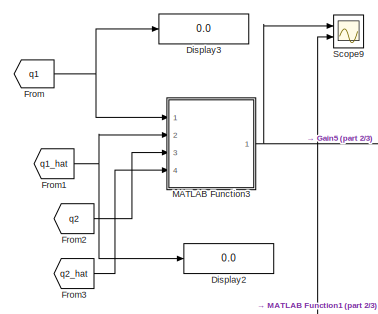
[diagram: root canvas - part 1/3, top left region]
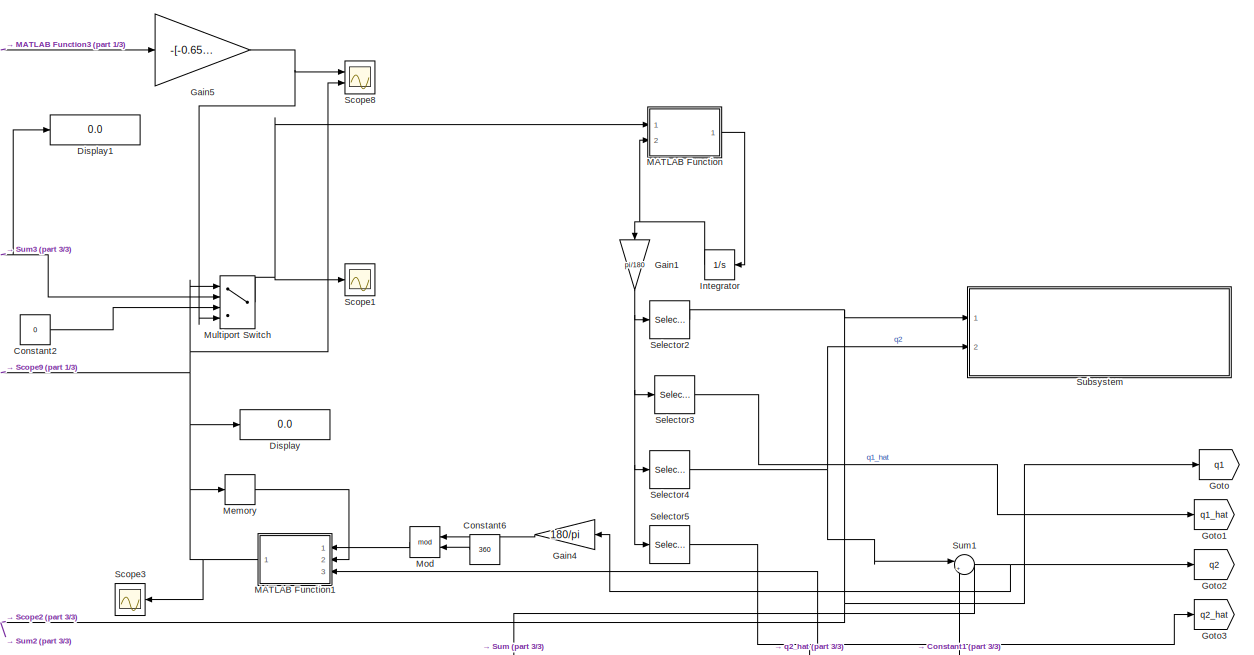
[diagram: root canvas - part 2/3, middle right region]
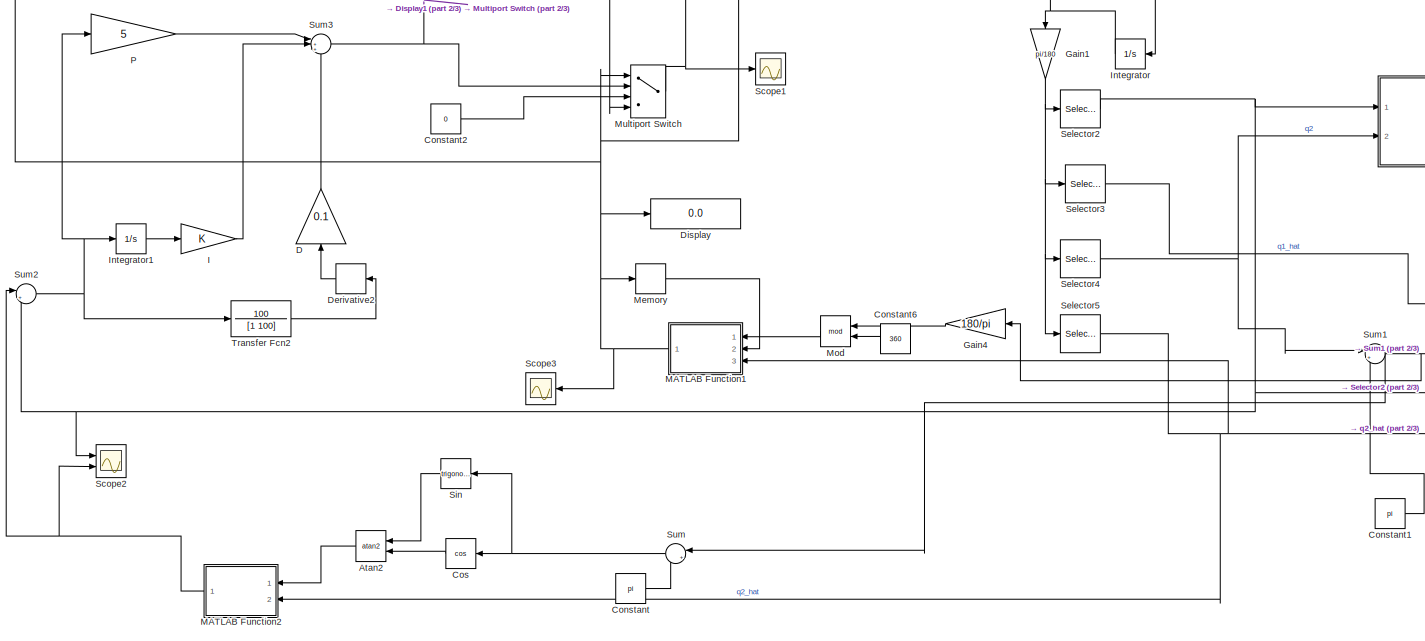
[diagram: root canvas - part 3/3, central region]
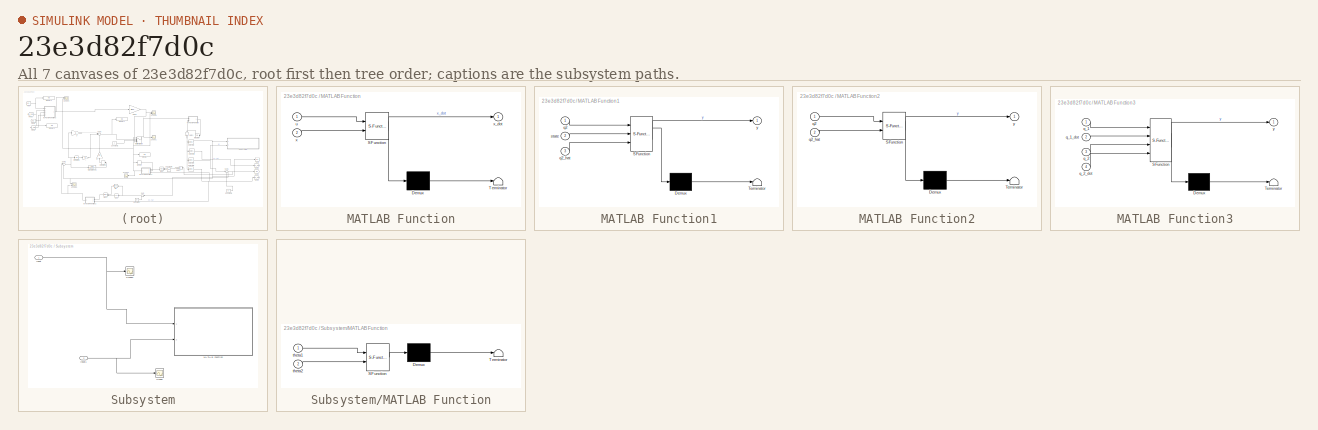
[diagram: thumbnail index - all 7 canvases of the model, root first then tree order]
MODEL slx_23e3d82f7d0c
KIND model
CONFIG AbsTol = auto
CONFIG EnableMultiTasking = off
CONFIG FixedStep = 0.01
CONFIG MaxStep = auto
CONFIG MinStep = auto
CONFIG RelTol = 1e-3
CONFIG SampleTimeConstraint = Unconstrained
CONFIG SolverName = ode1
CONFIG StartTime = 0
CONFIG StopTime = 10
BLOCK [Trigonometry] Atan2
  Operator = atan2
  Ports = [2, 1]
BLOCK [Constant] Constant
  Value = pi
BLOCK [Constant] Constant1
  Value = pi
BLOCK [Constant] Constant2
  Value = 0
BLOCK [Constant] Constant6
  Value = 360
BLOCK [Trigonometry] Cos
  Operator = cos
  Ports = [1, 1]
BLOCK [Gain] D
  Gain = 0.1
  NameLocation = left
BLOCK [Derivative] Derivative2
BLOCK [Display] Display
  Decimation = 1
  Ports = [1]
BLOCK [Display] Display1
  Decimation = 1
  Ports = [1]
BLOCK [Display] Display2
  Decimation = 1
  Ports = [1]
BLOCK [Display] Display3
  Decimation = 1
  Ports = [1]
BLOCK [From] From
  GotoTag = q1
BLOCK [From] From1
  GotoTag = q1_hat
BLOCK [From] From2
  GotoTag = q2
BLOCK [From] From3
  GotoTag = q2_hat
BLOCK [Gain] Gain1
  Gain = pi/180
  NameLocation = right
BLOCK [Gain] Gain4
  Gain = 180/pi
BLOCK [Gain] Gain5
  Gain = -[-0.6561,-1.1004,-10.3936,-1.2498]
  Multiplication = Matrix(K*u)
BLOCK [Goto] Goto
  GotoTag = q1
BLOCK [Goto] Goto1
  GotoTag = q1_hat
BLOCK [Goto] Goto2
  GotoTag = q2
BLOCK [Goto] Goto3
  GotoTag = q2_hat
BLOCK [Gain] I
BLOCK [Integrator] Integrator
  InitialCondition = [0;0;20;0]
  NameLocation = top
  Ports = [1, 1]
BLOCK [Integrator] Integrator1
  Ports = [1, 1]
BLOCK [SubSystem] MATLAB Function
  ErrorFcn = Stateflow.Translate.translate
  PermitHierarchicalResolution = ExplicitOnly
  Ports = [2, 1]
  RequestExecContextInheritance = off
  SFBlockType = MATLAB Function
  TreatAsAtomicUnit = on
BLOCK [Demux] MATLAB Function/ Demux 
  Outputs = 1
  Ports = [1, 1]
BLOCK [S-Function] MATLAB Function/ SFunction 
  EnableBusSupport = on
  FunctionName = sf_sfun
  PortCounts = [2 2]
  Ports = [2, 2]
  SFcnIsStateOwnerBlock = off
  SFunctionDeploymentMode = off
  Tag = Stateflow S-Function 1
BLOCK [Terminator] MATLAB Function/ Terminator 
BLOCK [Inport] MATLAB Function/u
BLOCK [Inport] MATLAB Function/x
  Port = 2
BLOCK [Outport] MATLAB Function/x_dot
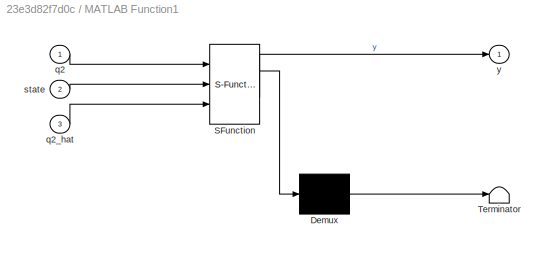
BLOCK [SubSystem] MATLAB Function1
  ErrorFcn = Stateflow.Translate.translate
  PermitHierarchicalResolution = ExplicitOnly
  Ports = [3, 1]
  RequestExecContextInheritance = off
  SFBlockType = MATLAB Function
  TreatAsAtomicUnit = on
BLOCK [Demux] MATLAB Function1/ Demux 
  Outputs = 1
  Ports = [1, 1]
BLOCK [S-Function] MATLAB Function1/ SFunction 
  EnableBusSupport = on
  FunctionName = sf_sfun
  PortCounts = [3 2]
  Ports = [3, 2]
  SFcnIsStateOwnerBlock = off
  SFunctionDeploymentMode = off
  Tag = Stateflow S-Function 3
BLOCK [Terminator] MATLAB Function1/ Terminator 
BLOCK [Inport] MATLAB Function1/q2
BLOCK [Inport] MATLAB Function1/q2_hat
  Port = 3
BLOCK [Inport] MATLAB Function1/state
  Port = 2
BLOCK [Outport] MATLAB Function1/y
BLOCK [SubSystem] MATLAB Function2
  AttributesFormatString = %<Tag>
  ErrorFcn = Stateflow.Translate.translate
  PermitHierarchicalResolution = ExplicitOnly
  Ports = [2, 1]
  RequestExecContextInheritance = off
  SFBlockType = MATLAB Function
  Tag = Desired
  TreatAsAtomicUnit = on
BLOCK [Demux] MATLAB Function2/ Demux 
  Outputs = 1
  Ports = [1, 1]
BLOCK [S-Function] MATLAB Function2/ SFunction 
  EnableBusSupport = on
  FunctionName = sf_sfun
  PortCounts = [2 2]
  Ports = [2, 2]
  SFcnIsStateOwnerBlock = off
  SFunctionDeploymentMode = off
  Tag = Stateflow S-Function 4
BLOCK [Terminator] MATLAB Function2/ Terminator 
BLOCK [Inport] MATLAB Function2/q2
BLOCK [Inport] MATLAB Function2/q2_hat
  Port = 2
BLOCK [Outport] MATLAB Function2/y
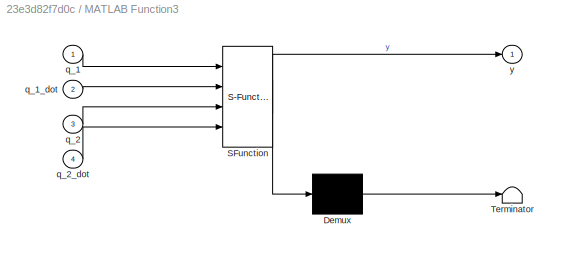
BLOCK [SubSystem] MATLAB Function3
  ErrorFcn = Stateflow.Translate.translate
  PermitHierarchicalResolution = ExplicitOnly
  Ports = [4, 1]
  RequestExecContextInheritance = off
  SFBlockType = MATLAB Function
  TreatAsAtomicUnit = on
BLOCK [Demux] MATLAB Function3/ Demux 
  Outputs = 1
  Ports = [1, 1]
BLOCK [S-Function] MATLAB Function3/ SFunction 
  EnableBusSupport = on
  FunctionName = sf_sfun
  PortCounts = [4 2]
  Ports = [4, 2]
  SFcnIsStateOwnerBlock = off
  SFunctionDeploymentMode = off
  Tag = Stateflow S-Function 5
BLOCK [Terminator] MATLAB Function3/ Terminator 
BLOCK [Inport] MATLAB Function3/q_1
BLOCK [Inport] MATLAB Function3/q_1_dot
  Port = 2
BLOCK [Inport] MATLAB Function3/q_2
  Port = 3
BLOCK [Inport] MATLAB Function3/q_2_dot
  Port = 4
BLOCK [Outport] MATLAB Function3/y
BLOCK [Memory] Memory
  InitialCondition = 1
BLOCK [Math] Mod
  Operator = mod
  Ports = [2, 1]
BLOCK [MultiPortSwitch] Multiport Switch
  InputSameDT = off
  Ports = [4, 1]
  SaturateOnIntegerOverflow = off
BLOCK [Gain] P
  Gain = 5
BLOCK [Scope] Scope1
  Floating = off
  NumInputPorts = 1
  Ports = [1]
  ScopeSpecificationString = Simulink.scopes.TimeScopeBlockCfg('CurrentConfiguration', extmgr.ConfigurationSet(extmgr.Configuration('Core','General UI',true),extmgr.Configuration('Core','Source UI',true),extmgr.Configuration('Sources','WiredSimulink',true,'DataLoggingVariableName','ScopeData1'),extmgr.Configuration('Visuals','Time Domain',true,'SerializedDisplays',{struct('MinYLimReal','-49.80571','MaxYLimReal','49.06084','YL...<+1410ch>
BLOCK [Scope] Scope2
  Floating = off
  NumInputPorts = 2
  Ports = [2]
  ScopeSpecificationString = Simulink.scopes.TimeScopeBlockCfg('CurrentConfiguration', extmgr.ConfigurationSet(extmgr.Configuration('Core','General UI',true),extmgr.Configuration('Core','Source UI',true),extmgr.Configuration('Sources','WiredSimulink',true,'DataLoggingVariableName','ScopeData2'),extmgr.Configuration('Visuals','Time Domain',true,'SerializedDisplays',{struct('MinYLimReal','-2.2841','MaxYLimReal','2.16445','YLabe...<+1461ch>
BLOCK [Scope] Scope3
  Floating = off
  NumInputPorts = 1
  Ports = [1]
  ScopeSpecificationString = Simulink.scopes.TimeScopeBlockCfg('CurrentConfiguration', extmgr.ConfigurationSet(extmgr.Configuration('Core','General UI',true),extmgr.Configuration('Core','Source UI',true),extmgr.Configuration('Sources','WiredSimulink',true,'DataLoggingVariableName','ScopeData3'),extmgr.Configuration('Visuals','Time Domain',true,'SerializedDisplays',{struct('MinYLimReal','0.75','MaxYLimReal','3.25','YLabelReal'...<+1396ch>
BLOCK [Scope] Scope8
  Floating = off
  NumInputPorts = 2
  Ports = [2]
  ScopeSpecificationString = Simulink.scopes.TimeScopeBlockCfg('CurrentConfiguration', extmgr.ConfigurationSet(extmgr.Configuration('Core','General UI',true),extmgr.Configuration('Core','Source UI',true),extmgr.Configuration('Sources','WiredSimulink',true,'DataLoggingVariableName','ScopeData5'),extmgr.Configuration('Visuals','Time Domain',true,'SerializedDisplays',{struct('MinYLimReal','-53.33145','MaxYLimReal','54.47923','YL...<+1436ch>
BLOCK [Scope] Scope9
  Floating = off
  NumInputPorts = 2
  Ports = [2]
  ScopeSpecificationString = Simulink.scopes.TimeScopeBlockCfg('CurrentConfiguration', extmgr.ConfigurationSet(extmgr.Configuration('Core','General UI',true),extmgr.Configuration('Core','Source UI',true),extmgr.Configuration('Sources','WiredSimulink',true,'DataLoggingVariableName','ScopeData6'),extmgr.Configuration('Visuals','Time Domain',true,'SerializedDisplays',{struct('MinYLimReal','-0.20917','MaxYLimReal','2.96302','YLab...<+1400ch>
BLOCK [Selector] Selector2
  IndexOptions = Index vector (dialog)
  Indices = 1
  InputPortWidth = 4
  OutputSizes = 1
  Ports = [1, 1]
BLOCK [Selector] Selector3
  IndexOptions = Index vector (dialog)
  Indices = 2
  InputPortWidth = 4
  OutputSizes = 1
  Ports = [1, 1]
BLOCK [Selector] Selector4
  IndexOptions = Index vector (dialog)
  Indices = 3
  InputPortWidth = 4
  OutputSizes = 1
  Ports = [1, 1]
BLOCK [Selector] Selector5
  IndexOptions = Index vector (dialog)
  Indices = 4
  InputPortWidth = 4
  OutputSizes = 1
  Ports = [1, 1]
BLOCK [Trigonometry] Sin
  Ports = [1, 1]
BLOCK [SubSystem] Subsystem
  Ports = [2]
  RequestExecContextInheritance = off
BLOCK [Inport] Subsystem/Input
BLOCK [Inport] Subsystem/Input1
  Port = 2
BLOCK [SubSystem] Subsystem/MATLAB Function
  ErrorFcn = Stateflow.Translate.translate
  PermitHierarchicalResolution = ExplicitOnly
  Ports = [2]
  RequestExecContextInheritance = off
  SFBlockType = MATLAB Function
  TreatAsAtomicUnit = on
BLOCK [Demux] Subsystem/MATLAB Function/ Demux 
  Outputs = 1
  Ports = [1, 1]
BLOCK [S-Function] Subsystem/MATLAB Function/ SFunction 
  EnableBusSupport = on
  FunctionName = sf_sfun
  PortCounts = [2 1]
  Ports = [2, 1]
  SFcnIsStateOwnerBlock = off
  SFunctionDeploymentMode = off
  Tag = Stateflow S-Function 2
BLOCK [Terminator] Subsystem/MATLAB Function/ Terminator 
BLOCK [Inport] Subsystem/MATLAB Function/theta1
BLOCK [Inport] Subsystem/MATLAB Function/theta2
  Port = 2
BLOCK [Scope] Subsystem/Scope
  Floating = off
  NumInputPorts = 1
  Ports = [1]
  ScopeSpecificationString = Simulink.scopes.TimeScopeBlockCfg('CurrentConfiguration', extmgr.ConfigurationSet(extmgr.Configuration('Core','General UI',true),extmgr.Configuration('Core','Source UI',true),extmgr.Configuration('Sources','WiredSimulink',true),extmgr.Configuration('Visuals','Time Domain',true,'SerializedDisplays',{struct('MinYLimReal','-0.7854','MaxYLimReal','7.06858','YLabelReal','','MinYLimMag','0.00000','MaxYL...<+1328ch>
BLOCK [Scope] Subsystem/Scope1
  Floating = off
  NumInputPorts = 1
  Ports = [1]
  ScopeSpecificationString = Simulink.scopes.TimeScopeBlockCfg('CurrentConfiguration', extmgr.ConfigurationSet(extmgr.Configuration('Core','General UI',true),extmgr.Configuration('Core','Source UI',true),extmgr.Configuration('Sources','WiredSimulink',true,'DataLoggingVariableName','ScopeData1'),extmgr.Configuration('Visuals','Time Domain',true,'SerializedDisplays',{struct('MinYLimReal','-0.0677','MaxYLimReal','0.60933','YLabe...<+1362ch>
BLOCK [Sum] Sum
  Inputs = |+-
  Ports = [2, 1]
BLOCK [Sum] Sum1
  Inputs = |++
  Ports = [2, 1]
BLOCK [Sum] Sum2
  Inputs = |+-
  Ports = [2, 1]
BLOCK [Sum] Sum3
  Inputs = |+++
  Ports = [3, 1]
BLOCK [TransferFcn] Transfer Fcn2
  Denominator = [1 100]
  NameLocation = top
  Numerator = 100
LINE Atan2:1 -> MATLAB Function2:1
LINE Constant1:1 -> Sum1:2
LINE Constant2:1 -> Multiport Switch:3
LINE Constant6:1 -> Mod:2
LINE Constant:1 -> Sum:2
LINE Cos:1 -> Atan2:2
LINE D:1 -> Sum3:3
LINE Derivative2:1 -> D:1
NET From1:1 -> Display2:1, MATLAB Function3:2
LINE From2:1 -> MATLAB Function3:3
LINE From3:1 -> MATLAB Function3:4
NET From:1 -> Display3:1, MATLAB Function3:1
NET Gain1:1 -> Selector2:1, Selector3:1, Selector4:1, Selector5:1
LINE Gain4:1 -> Mod:1
NET Gain5:1 -> Multiport Switch:4, Scope8:1
LINE I:1 -> Sum3:2
LINE Integrator1:1 -> I:1
NET Integrator:1 -> Gain1:1, MATLAB Function:2
NET MATLAB Function1:1 -> Display:1, Memory:1, Multiport Switch:1, Scope3:1, Scope8:2, Scope9:2
NET MATLAB Function2:1 -> Scope2:2, Sum2:1
NET MATLAB Function3:1 -> Gain5:1, Scope9:1
LINE MATLAB Function:1 -> Integrator:1
LINE Memory:1 -> MATLAB Function1:2
LINE Mod:1 -> MATLAB Function1:1
NET Multiport Switch:1 -> MATLAB Function:1, Scope1:1
LINE P:1 -> Sum3:1
NET Selector2:1 -> Goto:1, Scope2:1, Subsystem:1, Sum2:2
LINE Selector3:1 -> Goto1:1
NET Selector4:1 -> Subsystem:2, Sum1:1
NET Selector5:1 -> Goto3:1, MATLAB Function1:3, MATLAB Function2:2
LINE Sin:1 -> Atan2:1
NET Subsystem/Input1:1 -> Subsystem/MATLAB Function:2, Subsystem/Scope:1
NET Subsystem/Input:1 -> Subsystem/MATLAB Function:1, Subsystem/Scope1:1
NET Sum1:1 -> Gain4:1, Goto2:1, Sum:1
NET Sum2:1 -> Integrator1:1, P:1, Transfer Fcn2:1
NET Sum3:1 -> Display1:1, Multiport Switch:2
NET Sum:1 -> Cos:1, Sin:1
LINE Transfer Fcn2:1 -> Derivative2:1
note: NET lines group one-source signal fan-out (src -> all destinations, sorted); 1:1 wires keep LINE
CHART MATLAB Function states=1 transitions=1
  STATE_LABEL 'eML_blk_kernel()'
  STATE_LABEL 'SCRIPT:\nfunction x_dot  = fcn(u, x)\n\ntheta_1_dot = 0.0171;\ntheta_2_dot = 0.0038;\ntheta_3_dot = 0.0038;\ntheta_4_dot = 0.0921;\n\ntheta_1 = 0.0304;\ntheta_2 = 0.0184;\ntheta_3 = 0.0184;\ntheta_4 = 0.0921;\ntheta_5 = 0.6101;\ntheta_6 = 0.0097;\n\nq_1 = x(1);\nq_1_dot = x(2);\nq_2= x(3);\nq_2_dot=x(4);\nq_dot = [q_1_dot;q_2_dot];\n\nm_11 = theta_1+theta_2*sin(q_2)^2;\nm_12 = theta_3*cos(q_2);\nc_11 = 2*theta_2*sin(q_2...<+471ch>'
CHART Subsystem/MATLAB Function states=1 transitions=1
  STATE_LABEL 'eML_blk_kernel()'
  STATE_LABEL "SCRIPT:\nfunction  fcn(theta1,theta2)\nlink1_frame1 = [0,0,0;\n                0,0,-1;\n                0,6,-1;\n                0,6,0;\n                0,8,0]; % declaration of link1 points in FRAME-1\nlink1_frame0 = zeros(5,3);\nlink2_frame2 = [0,0,0;\n                0,12,0]; % declaration of link2 points in FRAME-1    \nlink2_frame1 = zeros(2,3);\nlink2_frame0 = zeros(2,3);\nplot3([0,0],[0,0],[-10,0],'ks-...<+1299ch>"
CHART MATLAB Function1 states=1 transitions=1
  STATE_LABEL 'eML_blk_kernel()'
  STATE_LABEL 'SCRIPT:\nfunction y = fcn(q2,state,q2_hat)\n% in state 1\nif (q2 > 170) && (q2 < 190) && (state == 2) &&(abs(q2_hat)<0.5)\n    y = 1;\nelseif ((q2 < 20) && (q2 >0) && (state ==1)) || ((q2 >340) && (q2 <360) && (state ==1))\n    y = 3;\nelseif ((q2 > 20) && (state ==3))&& (q2 < 340)\n    y = 2;\nelse \n    y =state;\nend\n\n%atan(sin(q2), cos(q2))'
CHART MATLAB Function2 states=1 transitions=1
  STATE_LABEL 'eML_blk_kernel()'
  STATE_LABEL 'SCRIPT:\nfunction y = fcn(q2,q2_hat)\nk1 = 1;\nk2 = 0;\ny = k1*q2+k2*q2_hat;\n'
CHART MATLAB Function3 states=1 transitions=1
  STATE_LABEL 'eML_blk_kernel()'
  STATE_LABEL 'SCRIPT:\nfunction y = fcn(q_1,q_1_dot,q_2,q_2_dot)\nq_2 = atan2(sin(q_2),cos(q_2));\nq_hat = [q_1;q_1_dot;q_2;q_2_dot];\ny = q_hat;\n'
CHART  states=0 transitions=0
CHART  states=0 transitions=0
CHART  states=0 transitions=0
CHART  states=0 transitions=0
CHART  states=0 transitions=0
